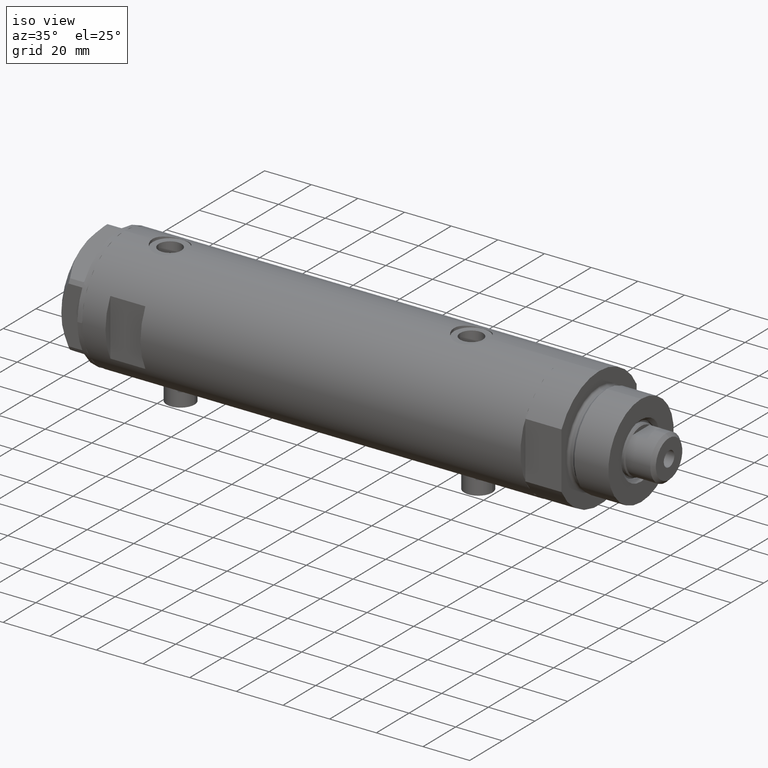
[diagram: clean part render]
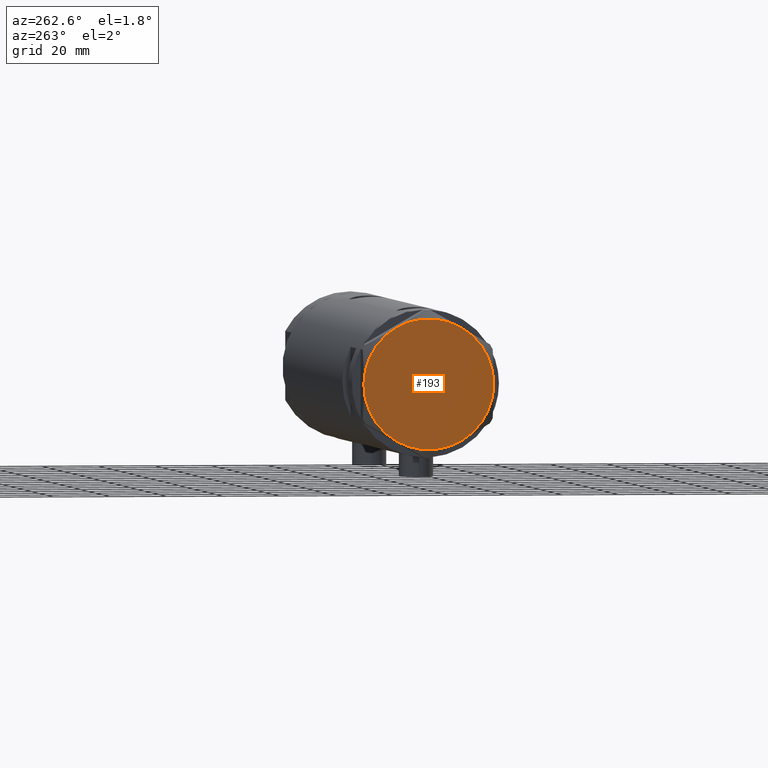
[diagram: tour spotlight — one face highlighted and labeled with its STEP entity id]
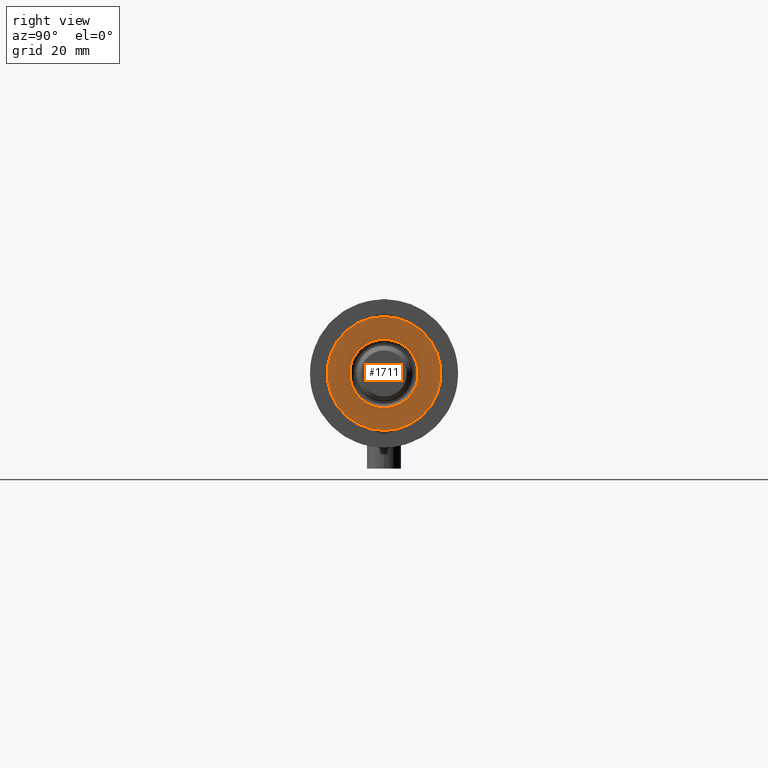
[diagram: tour spotlight — one face highlighted and labeled with its STEP entity id]
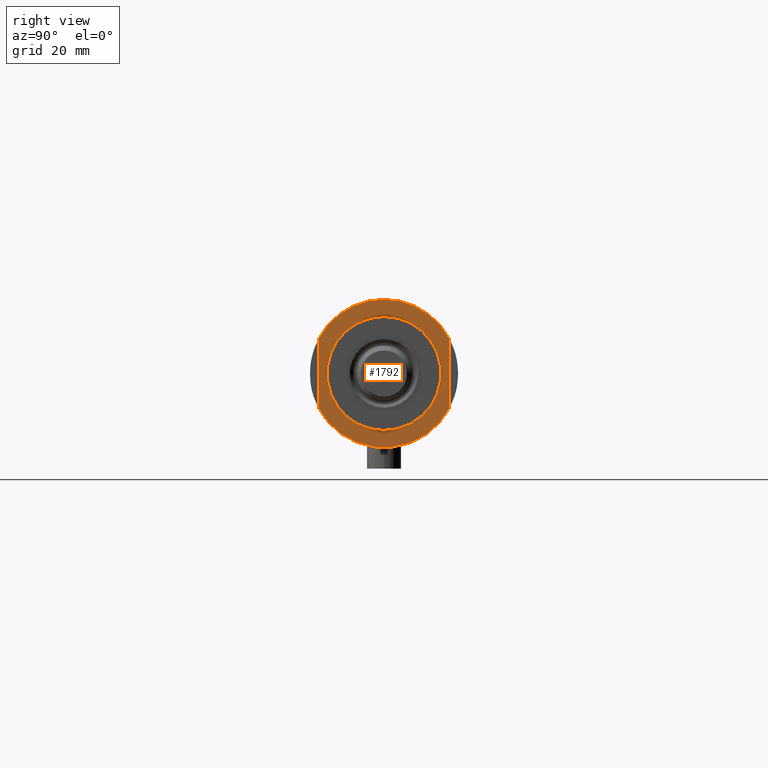
[diagram: tour spotlight — one face highlighted and labeled with its STEP entity id]
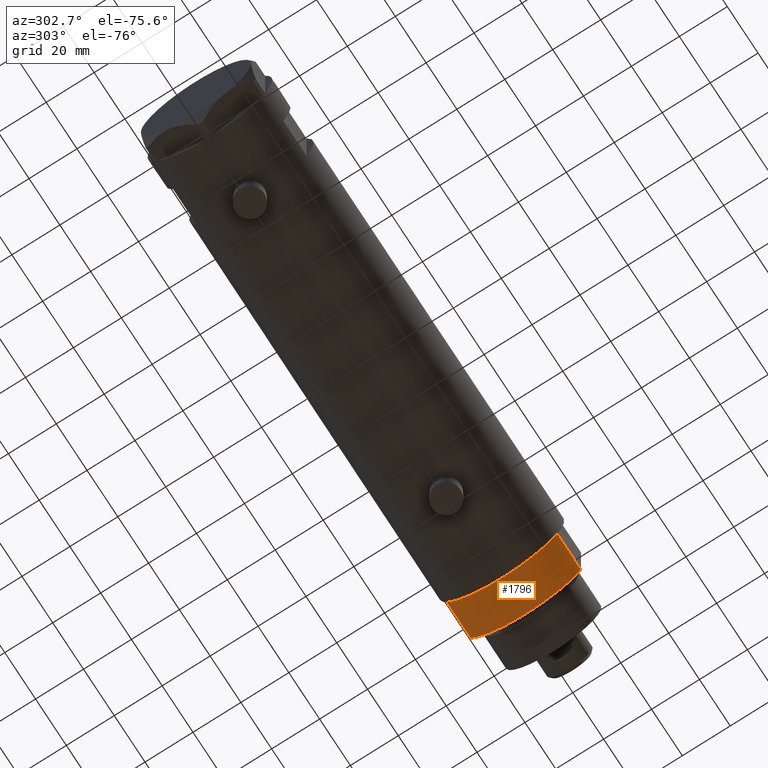
[diagram: tour spotlight — one face highlighted and labeled with its STEP entity id]
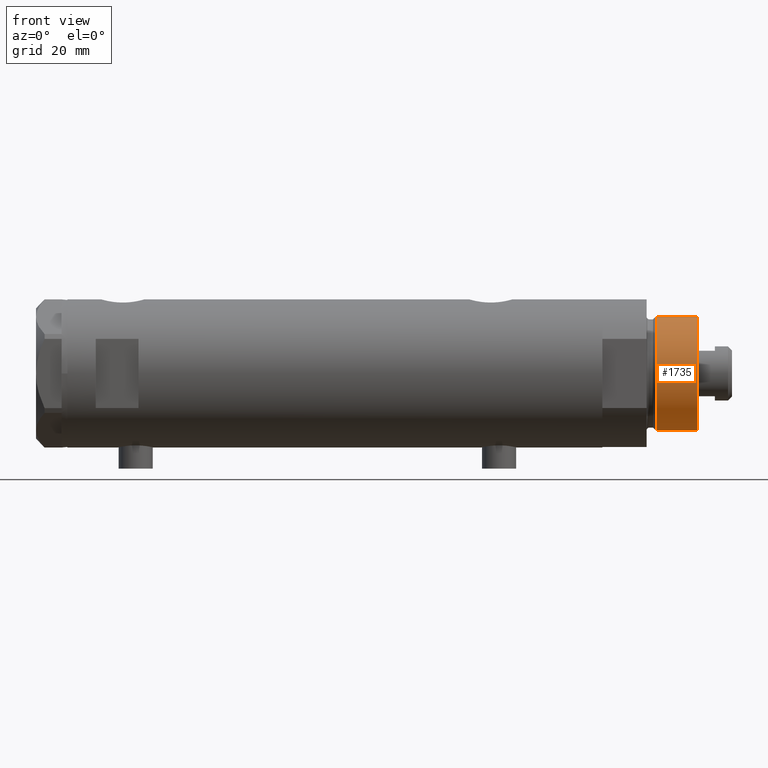
[diagram: tour spotlight — one face highlighted and labeled with its STEP entity id]
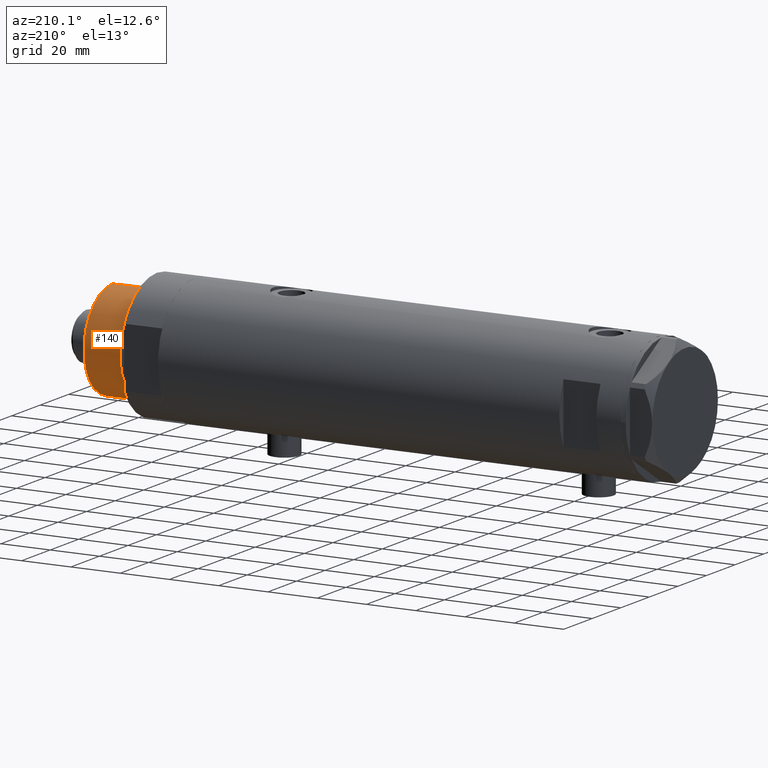
[diagram: tour spotlight — one face highlighted and labeled with its STEP entity id]
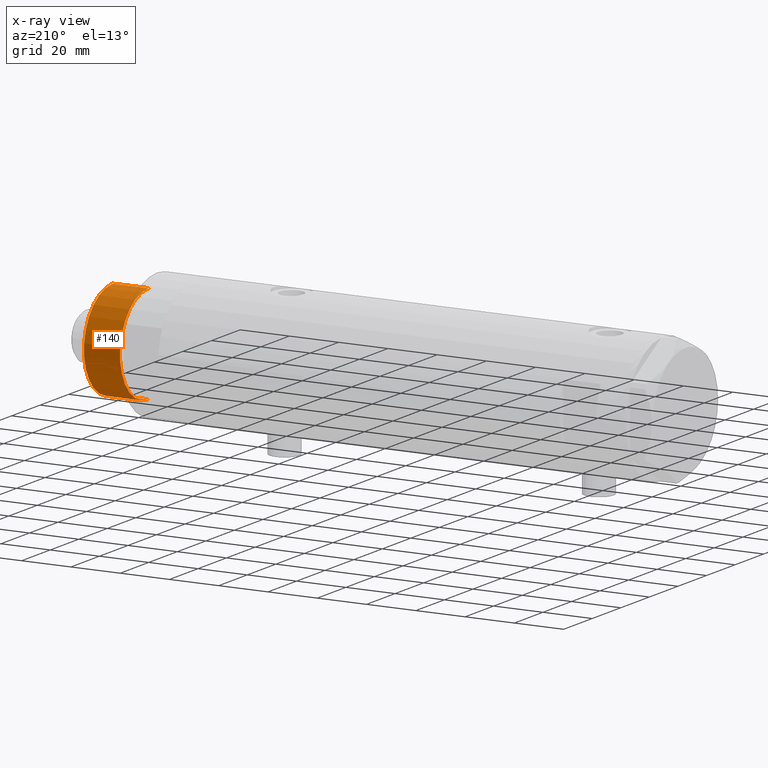
[diagram: x-ray of the same camera — body ghosted, this tour face saturated]
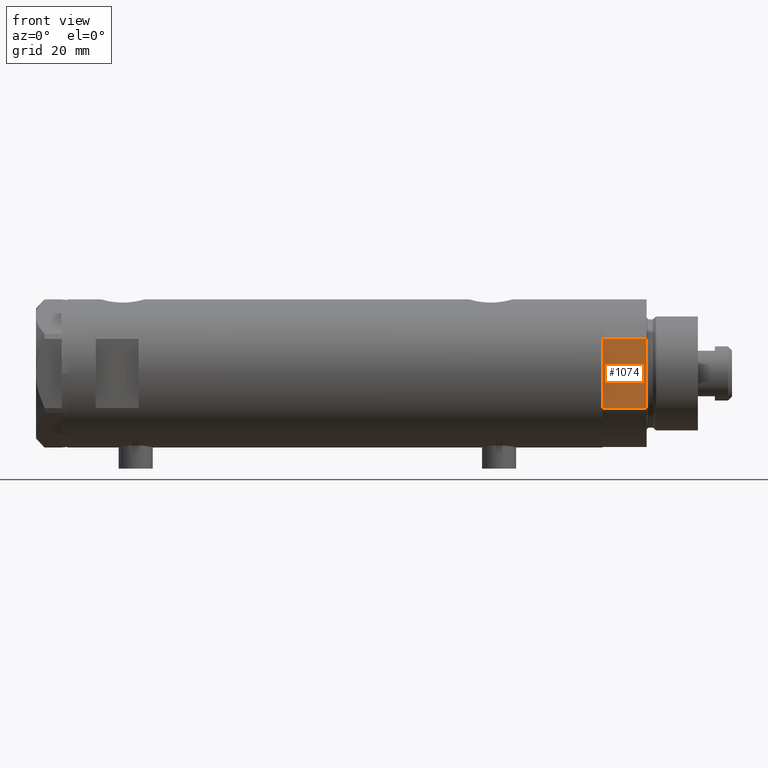
[diagram: tour spotlight — one face highlighted and labeled with its STEP entity id]
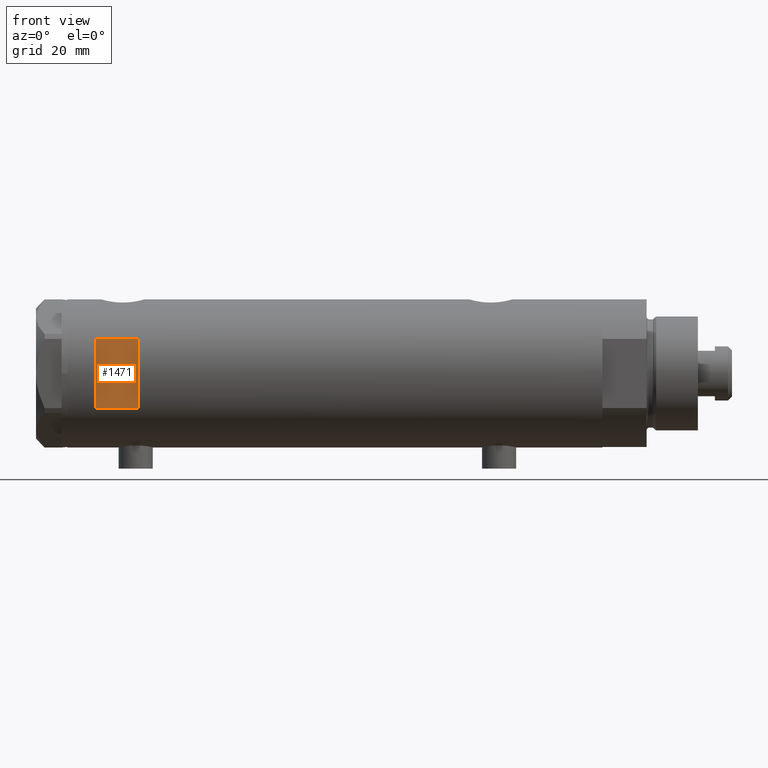
[diagram: tour spotlight — one face highlighted and labeled with its STEP entity id]
A machine part: a face-by-face anatomy tour. The part has 134 B-rep faces; the first image is the clean iso view, then the 8 largest visible faces are spotlighted one at a time (largest first), each with its STEP entity span.

Face 1 — auxiliary view, entity #193. In plain terms, the highlighted planar face has unit normal (-1, -0, 0).
Definition (entity closure, byte-faithful):
#57 = CARTESIAN_POINT ( 'NONE',  ( 0.000000000000000000, 0.000000000000000000, 9.000000000000000000 ) ) ;
#98 = CARTESIAN_POINT ( 'NONE',  ( -11.50000000000004441, 19.91858428704211548, 9.000000000000000000 ) ) ;
#193 = ADVANCED_FACE ( 'NONE', ( #4013 ), #1480, .T. ) ;
#208 = CARTESIAN_POINT ( 'NONE',  ( -11.49999999999990585, -19.91858428704219364, 9.000000000000000000 ) ) ;
#209 = CARTESIAN_POINT ( 'NONE',  ( 11.50000000000018296, -19.91858428704203732, 9.000000000000000000 ) ) ;
#247 = ORIENTED_EDGE ( 'NONE', *, *, #3307, .T. ) ;
#273 = CIRCLE ( 'NONE', #3564, 23.00000000000004619 ) ;
#281 = DIRECTION ( 'NONE',  ( 0.000000000000000000, 0.000000000000000000, 1.000000000000000000 ) ) ;
#449 = CIRCLE ( 'NONE', #4292, 23.00000000000004619 ) ;
#463 = AXIS2_PLACEMENT_3D ( 'NONE', #2617, #4765, #4091 ) ;
#591 = ORIENTED_EDGE ( 'NONE', *, *, #4259, .T. ) ;
#627 = CARTESIAN_POINT ( 'NONE',  ( 0.000000000000000000, 0.000000000000000000, 9.000000000000000000 ) ) ;
#681 = ORIENTED_EDGE ( 'NONE', *, *, #1924, .T. ) ;
#853 = DIRECTION ( 'NONE',  ( 0.000000000000000000, 0.000000000000000000, 1.000000000000000000 ) ) ;
#984 = AXIS2_PLACEMENT_3D ( 'NONE', #627, #1693, #3174 ) ;
#1199 = CARTESIAN_POINT ( 'NONE',  ( 11.49999999999990408, 19.91858428704219364, 9.000000000000000000 ) ) ;
#1480 = PLANE ( 'NONE',  #3637 ) ;
#1563 = EDGE_CURVE ( 'NONE', #4490, #1910, #2737, .T. ) ;
#1564 = DIRECTION ( 'NONE',  ( 0.000000000000000000, 0.000000000000000000, 1.000000000000000000 ) ) ;
#1693 = DIRECTION ( 'NONE',  ( 0.000000000000000000, 0.000000000000000000, 1.000000000000000000 ) ) ;
#1710 = VERTEX_POINT ( 'NONE', #3215 ) ;
#1910 = VERTEX_POINT ( 'NONE', #1984 ) ;
#1924 = EDGE_CURVE ( 'NONE', #2931, #4490, #449, .T. ) ;
#1984 = CARTESIAN_POINT ( 'NONE',  ( 22.99999999999995026, 2.373657066004705010E-13, 9.000000000000000000 ) ) ;
#2035 = DIRECTION ( 'NONE',  ( 1.000000000000000000, 0.000000000000000000, 0.000000000000000000 ) ) ;
#2381 = CARTESIAN_POINT ( 'NONE',  ( 0.000000000000000000, 0.000000000000000000, 9.000000000000000000 ) ) ;
#2407 = DIRECTION ( 'NONE',  ( 1.000000000000000000, 0.000000000000000000, 0.000000000000000000 ) ) ;
#2445 = CARTESIAN_POINT ( 'NONE',  ( 0.000000000000000000, 0.000000000000000000, 9.000000000000000000 ) ) ;
#2543 = AXIS2_PLACEMENT_3D ( 'NONE', #57, #1564, #4181 ) ;
#2617 = CARTESIAN_POINT ( 'NONE',  ( 0.000000000000000000, 0.000000000000000000, 9.000000000000000000 ) ) ;
#2701 = ORIENTED_EDGE ( 'NONE', *, *, #1563, .T. ) ;
#2737 = CIRCLE ( 'NONE', #3968, 23.00000000000004619 ) ;
#2795 = VERTEX_POINT ( 'NONE', #1199 ) ;
#2931 = VERTEX_POINT ( 'NONE', #208 ) ;
#2933 = EDGE_CURVE ( 'NONE', #4376, #1710, #273, .T. ) ;
#2953 = CIRCLE ( 'NONE', #984, 23.00000000000004619 ) ;
#3008 = CARTESIAN_POINT ( 'NONE',  ( 0.000000000000000000, 0.000000000000000000, 9.000000000000000000 ) ) ;
#3174 = DIRECTION ( 'NONE',  ( 1.000000000000000000, 0.000000000000000000, 0.000000000000000000 ) ) ;
#3215 = CARTESIAN_POINT ( 'NONE',  ( -23.00000000000004619, -8.112498833180673323E-14, 9.000000000000000000 ) ) ;
#3307 = EDGE_CURVE ( 'NONE', #1710, #2931, #2953, .T. ) ;
#3337 = ORIENTED_EDGE ( 'NONE', *, *, #3698, .T. ) ;
#3564 = AXIS2_PLACEMENT_3D ( 'NONE', #2445, #4250, #4709 ) ;
#3602 = ORIENTED_EDGE ( 'NONE', *, *, #2933, .T. ) ;
#3637 = AXIS2_PLACEMENT_3D ( 'NONE', #3639, #281, #3665 ) ;
#3639 = CARTESIAN_POINT ( 'NONE',  ( 0.000000000000000000, 0.000000000000000000, 9.000000000000000000 ) ) ;
#3665 = DIRECTION ( 'NONE',  ( 1.000000000000000000, 0.000000000000000000, -0.000000000000000000 ) ) ;
#3698 = EDGE_CURVE ( 'NONE', #2795, #4376, #4650, .T. ) ;
#3910 = CIRCLE ( 'NONE', #463, 23.00000000000004619 ) ;
#3968 = AXIS2_PLACEMENT_3D ( 'NONE', #3008, #853, #2407 ) ;
#4013 = FACE_OUTER_BOUND ( 'NONE', #4449, .T. ) ;
#4091 = DIRECTION ( 'NONE',  ( 1.000000000000000000, 0.000000000000000000, 0.000000000000000000 ) ) ;
#4181 = DIRECTION ( 'NONE',  ( 1.000000000000000000, 0.000000000000000000, 0.000000000000000000 ) ) ;
#4250 = DIRECTION ( 'NONE',  ( 0.000000000000000000, 0.000000000000000000, 1.000000000000000000 ) ) ;
#4259 = EDGE_CURVE ( 'NONE', #1910, #2795, #3910, .T. ) ;
#4273 = DIRECTION ( 'NONE',  ( 0.000000000000000000, 0.000000000000000000, 1.000000000000000000 ) ) ;
#4292 = AXIS2_PLACEMENT_3D ( 'NONE', #2381, #4273, #2035 ) ;
#4376 = VERTEX_POINT ( 'NONE', #98 ) ;
#4449 = EDGE_LOOP ( 'NONE', ( #2701, #591, #3337, #3602, #247, #681 ) ) ;
#4490 = VERTEX_POINT ( 'NONE', #209 ) ;
#4650 = CIRCLE ( 'NONE', #2543, 23.00000000000004619 ) ;
#4709 = DIRECTION ( 'NONE',  ( 1.000000000000000000, 0.000000000000000000, 0.000000000000000000 ) ) ;
#4765 = DIRECTION ( 'NONE',  ( 0.000000000000000000, 0.000000000000000000, 1.000000000000000000 ) ) ;

Face 2 — right view, entity #1711. In plain terms, the highlighted planar face has unit normal (1, 0, -0).
Definition (entity closure, byte-faithful):
#21 = CARTESIAN_POINT ( 'NONE',  ( 0.000000000000000000, 0.000000000000000000, 33.50000000000000000 ) ) ;
#48 = DIRECTION ( 'NONE',  ( 0.000000000000000000, 0.000000000000000000, 1.000000000000000000 ) ) ;
#80 = DIRECTION ( 'NONE',  ( -0.000000000000000000, -0.000000000000000000, -1.000000000000000000 ) ) ;
#167 = VERTEX_POINT ( 'NONE', #4570 ) ;
#172 = ORIENTED_EDGE ( 'NONE', *, *, #173, .T. ) ;
#173 = EDGE_CURVE ( 'NONE', #2964, #570, #352, .T. ) ;
#352 = CIRCLE ( 'NONE', #655, 19.99999999999999645 ) ;
#525 = AXIS2_PLACEMENT_3D ( 'NONE', #4180, #80, #1239 ) ;
#570 = VERTEX_POINT ( 'NONE', #3015 ) ;
#620 = CARTESIAN_POINT ( 'NONE',  ( 0.000000000000000000, 0.000000000000000000, 33.50000000000000000 ) ) ;
#655 = AXIS2_PLACEMENT_3D ( 'NONE', #725, #2235, #2533 ) ;
#685 = VERTEX_POINT ( 'NONE', #2536 ) ;
#725 = CARTESIAN_POINT ( 'NONE',  ( 0.000000000000000000, 0.000000000000000000, 33.50000000000000000 ) ) ;
#1006 = FACE_OUTER_BOUND ( 'NONE', #4121, .T. ) ;
#1014 = ORIENTED_EDGE ( 'NONE', *, *, #3111, .T. ) ;
#1239 = DIRECTION ( 'NONE',  ( 1.000000000000000000, 0.000000000000000000, 0.000000000000000000 ) ) ;
#1312 = CIRCLE ( 'NONE', #4039, 12.05000000000000426 ) ;
#1361 = FACE_BOUND ( 'NONE', #2869, .T. ) ;
#1452 = DIRECTION ( 'NONE',  ( 1.000000000000000000, 0.000000000000000000, 0.000000000000000000 ) ) ;
#1711 = ADVANCED_FACE ( 'NONE', ( #1361, #1006 ), #4345, .T. ) ;
#1892 = EDGE_CURVE ( 'NONE', #167, #685, #4043, .T. ) ;
#1950 = AXIS2_PLACEMENT_3D ( 'NONE', #620, #3598, #2130 ) ;
#2130 = DIRECTION ( 'NONE',  ( 1.000000000000000000, 0.000000000000000000, -0.000000000000000000 ) ) ;
#2231 = ORIENTED_EDGE ( 'NONE', *, *, #2354, .T. ) ;
#2235 = DIRECTION ( 'NONE',  ( 0.000000000000000000, 0.000000000000000000, 1.000000000000000000 ) ) ;
#2354 = EDGE_CURVE ( 'NONE', #570, #2964, #3886, .T. ) ;
#2533 = DIRECTION ( 'NONE',  ( 1.000000000000000000, 0.000000000000000000, 0.000000000000000000 ) ) ;
#2536 = CARTESIAN_POINT ( 'NONE',  ( 12.05000000000000426, 0.000000000000000000, 33.50000000000000000 ) ) ;
#2695 = DIRECTION ( 'NONE',  ( 1.000000000000000000, 0.000000000000000000, 0.000000000000000000 ) ) ;
#2869 = EDGE_LOOP ( 'NONE', ( #1014, #4827 ) ) ;
#2964 = VERTEX_POINT ( 'NONE', #4782 ) ;
#3015 = CARTESIAN_POINT ( 'NONE',  ( -19.99999999999999645, 0.000000000000000000, 33.50000000000000000 ) ) ;
#3111 = EDGE_CURVE ( 'NONE', #685, #167, #1312, .T. ) ;
#3598 = DIRECTION ( 'NONE',  ( 0.000000000000000000, 0.000000000000000000, 1.000000000000000000 ) ) ;
#3886 = CIRCLE ( 'NONE', #4134, 19.99999999999999645 ) ;
#4039 = AXIS2_PLACEMENT_3D ( 'NONE', #21, #4470, #1452 ) ;
#4043 = CIRCLE ( 'NONE', #525, 12.05000000000000426 ) ;
#4121 = EDGE_LOOP ( 'NONE', ( #2231, #172 ) ) ;
#4134 = AXIS2_PLACEMENT_3D ( 'NONE', #4148, #48, #2695 ) ;
#4148 = CARTESIAN_POINT ( 'NONE',  ( 0.000000000000000000, 0.000000000000000000, 33.50000000000000000 ) ) ;
#4180 = CARTESIAN_POINT ( 'NONE',  ( 0.000000000000000000, 0.000000000000000000, 33.50000000000000000 ) ) ;
#4345 = PLANE ( 'NONE',  #1950 ) ;
#4470 = DIRECTION ( 'NONE',  ( -0.000000000000000000, -0.000000000000000000, -1.000000000000000000 ) ) ;
#4570 = CARTESIAN_POINT ( 'NONE',  ( -12.05000000000000426, 1.475699392972560823E-15, 33.50000000000000000 ) ) ;
#4782 = CARTESIAN_POINT ( 'NONE',  ( 19.99999999999999645, 2.449293598294706119E-15, 33.50000000000000000 ) ) ;
#4827 = ORIENTED_EDGE ( 'NONE', *, *, #1892, .T. ) ;

Face 3 — right view, entity #1792. In plain terms, the highlighted planar face has unit normal (1, 0, -0).
Definition (entity closure, byte-faithful):
#2 = DIRECTION ( 'NONE',  ( -0.000000000000000000, -0.000000000000000000, -1.000000000000000000 ) ) ;
#62 = CARTESIAN_POINT ( 'NONE',  ( -12.12435565298215145, 23.00000000000000355, 15.50000000000000000 ) ) ;
#477 = CARTESIAN_POINT ( 'NONE',  ( 0.000000000000000000, 0.000000000000000000, 15.50000000000000000 ) ) ;
#540 = VERTEX_POINT ( 'NONE', #2850 ) ;
#546 = ORIENTED_EDGE ( 'NONE', *, *, #2580, .T. ) ;
#633 = DIRECTION ( 'NONE',  ( -1.000000000000000000, -0.000000000000000000, -0.000000000000000000 ) ) ;
#656 = DIRECTION ( 'NONE',  ( 1.000000000000000000, 0.000000000000000000, 0.000000000000000000 ) ) ;
#921 = AXIS2_PLACEMENT_3D ( 'NONE', #1873, #1536, #2997 ) ;
#1007 = CARTESIAN_POINT ( 'NONE',  ( 12.12435565298215323, -22.99999999999999645, 15.50000000000000000 ) ) ;
#1028 = CARTESIAN_POINT ( 'NONE',  ( 0.000000000000000000, 0.000000000000000000, 15.50000000000000000 ) ) ;
#1166 = CARTESIAN_POINT ( 'NONE',  ( 0.000000000000000000, 0.000000000000000000, 15.50000000000000000 ) ) ;
#1173 = CIRCLE ( 'NONE', #2436, 26.00000000000000355 ) ;
#1191 = DIRECTION ( 'NONE',  ( 1.000000000000000000, 0.000000000000000000, 0.000000000000000000 ) ) ;
#1384 = ORIENTED_EDGE ( 'NONE', *, *, #2820, .F. ) ;
#1466 = EDGE_CURVE ( 'NONE', #540, #3524, #2255, .T. ) ;
#1536 = DIRECTION ( 'NONE',  ( 0.000000000000000000, 0.000000000000000000, 1.000000000000000000 ) ) ;
#1547 = LINE ( 'NONE', #62, #3176 ) ;
#1572 = VERTEX_POINT ( 'NONE', #3889 ) ;
#1612 = ORIENTED_EDGE ( 'NONE', *, *, #2157, .T. ) ;
#1769 = DIRECTION ( 'NONE',  ( 1.000000000000000000, 0.000000000000000000, 0.000000000000000000 ) ) ;
#1786 = AXIS2_PLACEMENT_3D ( 'NONE', #1028, #4023, #656 ) ;
#1792 = ADVANCED_FACE ( 'NONE', ( #3755, #4500 ), #3029, .T. ) ;
#1863 = AXIS2_PLACEMENT_3D ( 'NONE', #1166, #3706, #2196 ) ;
#1873 = CARTESIAN_POINT ( 'NONE',  ( 0.000000000000000000, 0.000000000000000000, 15.50000000000000000 ) ) ;
#1936 = ORIENTED_EDGE ( 'NONE', *, *, #4700, .T. ) ;
#1939 = CARTESIAN_POINT ( 'NONE',  ( -12.12435565298215323, -22.99999999999999645, 15.50000000000000000 ) ) ;
#2020 = EDGE_CURVE ( 'NONE', #3588, #2749, #2080, .T. ) ;
#2080 = LINE ( 'NONE', #2900, #2958 ) ;
#2157 = EDGE_CURVE ( 'NONE', #4690, #2283, #3040, .T. ) ;
#2196 = DIRECTION ( 'NONE',  ( 1.000000000000000000, 0.000000000000000000, -0.000000000000000000 ) ) ;
#2255 = CIRCLE ( 'NONE', #4597, 20.00000000000000000 ) ;
#2283 = VERTEX_POINT ( 'NONE', #3457 ) ;
#2436 = AXIS2_PLACEMENT_3D ( 'NONE', #2487, #4018, #1769 ) ;
#2487 = CARTESIAN_POINT ( 'NONE',  ( 0.000000000000000000, 0.000000000000000000, 15.50000000000000000 ) ) ;
#2580 = EDGE_CURVE ( 'NONE', #3588, #1572, #2646, .T. ) ;
#2646 = CIRCLE ( 'NONE', #1786, 26.00000000000000355 ) ;
#2749 = VERTEX_POINT ( 'NONE', #1939 ) ;
#2820 = EDGE_CURVE ( 'NONE', #4690, #1572, #1547, .T. ) ;
#2850 = CARTESIAN_POINT ( 'NONE',  ( -20.00000000000000000, 2.449293598294706513E-15, 15.50000000000000000 ) ) ;
#2900 = CARTESIAN_POINT ( 'NONE',  ( -12.12435565298215145, -22.99999999999999645, 15.50000000000000000 ) ) ;
#2958 = VECTOR ( 'NONE', #633, 1000.000000000000000 ) ;
#2997 = DIRECTION ( 'NONE',  ( 1.000000000000000000, 0.000000000000000000, 0.000000000000000000 ) ) ;
#3029 = PLANE ( 'NONE',  #1863 ) ;
#3038 = DIRECTION ( 'NONE',  ( 1.000000000000000000, 0.000000000000000000, 0.000000000000000000 ) ) ;
#3040 = CIRCLE ( 'NONE', #921, 26.00000000000000355 ) ;
#3149 = AXIS2_PLACEMENT_3D ( 'NONE', #477, #2, #1191 ) ;
#3176 = VECTOR ( 'NONE', #3038, 1000.000000000000000 ) ;
#3227 = CIRCLE ( 'NONE', #3149, 20.00000000000000000 ) ;
#3297 = DIRECTION ( 'NONE',  ( 1.000000000000000000, 0.000000000000000000, 0.000000000000000000 ) ) ;
#3299 = CARTESIAN_POINT ( 'NONE',  ( -12.12435565298214613, 23.00000000000000355, 15.50000000000000000 ) ) ;
#3457 = CARTESIAN_POINT ( 'NONE',  ( -26.00000000000000355, 0.000000000000000000, 15.50000000000000000 ) ) ;
#3524 = VERTEX_POINT ( 'NONE', #4262 ) ;
#3588 = VERTEX_POINT ( 'NONE', #1007 ) ;
#3632 = EDGE_CURVE ( 'NONE', #3524, #540, #3227, .T. ) ;
#3706 = DIRECTION ( 'NONE',  ( 0.000000000000000000, 0.000000000000000000, 1.000000000000000000 ) ) ;
#3755 = FACE_BOUND ( 'NONE', #4326, .T. ) ;
#3889 = CARTESIAN_POINT ( 'NONE',  ( 12.12435565298214790, 23.00000000000000355, 15.50000000000000000 ) ) ;
#3995 = CARTESIAN_POINT ( 'NONE',  ( 0.000000000000000000, 0.000000000000000000, 15.50000000000000000 ) ) ;
#4014 = DIRECTION ( 'NONE',  ( -0.000000000000000000, -0.000000000000000000, -1.000000000000000000 ) ) ;
#4018 = DIRECTION ( 'NONE',  ( 0.000000000000000000, 0.000000000000000000, 1.000000000000000000 ) ) ;
#4023 = DIRECTION ( 'NONE',  ( 0.000000000000000000, 0.000000000000000000, 1.000000000000000000 ) ) ;
#4262 = CARTESIAN_POINT ( 'NONE',  ( 20.00000000000000000, 0.000000000000000000, 15.50000000000000000 ) ) ;
#4326 = EDGE_LOOP ( 'NONE', ( #4720, #4508 ) ) ;
#4368 = EDGE_LOOP ( 'NONE', ( #4804, #546, #1384, #1612, #1936 ) ) ;
#4500 = FACE_OUTER_BOUND ( 'NONE', #4368, .T. ) ;
#4508 = ORIENTED_EDGE ( 'NONE', *, *, #1466, .T. ) ;
#4597 = AXIS2_PLACEMENT_3D ( 'NONE', #3995, #4014, #3297 ) ;
#4690 = VERTEX_POINT ( 'NONE', #3299 ) ;
#4700 = EDGE_CURVE ( 'NONE', #2283, #2749, #1173, .T. ) ;
#4720 = ORIENTED_EDGE ( 'NONE', *, *, #3632, .T. ) ;
#4804 = ORIENTED_EDGE ( 'NONE', *, *, #2020, .F. ) ;

Face 4 — auxiliary view, entity #1796. In plain terms, the highlighted cylindrical surface (partial cylindrical patch) has radius 26 mm, axis along (-1, -0, 0).
Definition (entity closure, byte-faithful):
#257 = ORIENTED_EDGE ( 'NONE', *, *, #4493, .T. ) ;
#619 = EDGE_CURVE ( 'NONE', #2532, #1572, #4588, .T. ) ;
#656 = DIRECTION ( 'NONE',  ( 1.000000000000000000, 0.000000000000000000, 0.000000000000000000 ) ) ;
#732 = EDGE_LOOP ( 'NONE', ( #4106, #2939, #257, #851 ) ) ;
#738 = DIRECTION ( 'NONE',  ( -1.000000000000000000, 0.000000000000000000, 0.000000000000000000 ) ) ;
#847 = CARTESIAN_POINT ( 'NONE',  ( 12.12435565298215323, -22.99999999999999645, 0.000000000000000000 ) ) ;
#851 = ORIENTED_EDGE ( 'NONE', *, *, #619, .T. ) ;
#1007 = CARTESIAN_POINT ( 'NONE',  ( 12.12435565298215323, -22.99999999999999645, 15.50000000000000000 ) ) ;
#1028 = CARTESIAN_POINT ( 'NONE',  ( 0.000000000000000000, 0.000000000000000000, 15.50000000000000000 ) ) ;
#1048 = CYLINDRICAL_SURFACE ( 'NONE', #2258, 26.00000000000000355 ) ;
#1226 = DIRECTION ( 'NONE',  ( -0.000000000000000000, -0.000000000000000000, 1.000000000000000000 ) ) ;
#1306 = VECTOR ( 'NONE', #1226, 1000.000000000000000 ) ;
#1354 = DIRECTION ( 'NONE',  ( 1.000000000000000000, 0.000000000000000000, 0.000000000000000000 ) ) ;
#1572 = VERTEX_POINT ( 'NONE', #3889 ) ;
#1786 = AXIS2_PLACEMENT_3D ( 'NONE', #1028, #4023, #656 ) ;
#1795 = AXIS2_PLACEMENT_3D ( 'NONE', #2399, #2466, #1354 ) ;
#1796 = ADVANCED_FACE ( 'NONE', ( #2930 ), #1048, .T. ) ;
#1913 = LINE ( 'NONE', #3396, #2341 ) ;
#2258 = AXIS2_PLACEMENT_3D ( 'NONE', #4048, #4095, #738 ) ;
#2341 = VECTOR ( 'NONE', #4532, 1000.000000000000000 ) ;
#2399 = CARTESIAN_POINT ( 'NONE',  ( 0.000000000000000000, 0.000000000000000000, 0.000000000000000000 ) ) ;
#2466 = DIRECTION ( 'NONE',  ( 0.000000000000000000, 0.000000000000000000, 1.000000000000000000 ) ) ;
#2532 = VERTEX_POINT ( 'NONE', #4005 ) ;
#2580 = EDGE_CURVE ( 'NONE', #3588, #1572, #2646, .T. ) ;
#2646 = CIRCLE ( 'NONE', #1786, 26.00000000000000355 ) ;
#2840 = EDGE_CURVE ( 'NONE', #4451, #3588, #1913, .T. ) ;
#2930 = FACE_OUTER_BOUND ( 'NONE', #732, .T. ) ;
#2939 = ORIENTED_EDGE ( 'NONE', *, *, #2840, .F. ) ;
#3124 = CIRCLE ( 'NONE', #1795, 26.00000000000000355 ) ;
#3396 = CARTESIAN_POINT ( 'NONE',  ( 12.12435565298215323, -22.99999999999999645, 0.000000000000000000 ) ) ;
#3588 = VERTEX_POINT ( 'NONE', #1007 ) ;
#3824 = CARTESIAN_POINT ( 'NONE',  ( 12.12435565298215323, 23.00000000000000355, 0.000000000000000000 ) ) ;
#3889 = CARTESIAN_POINT ( 'NONE',  ( 12.12435565298214790, 23.00000000000000355, 15.50000000000000000 ) ) ;
#4005 = CARTESIAN_POINT ( 'NONE',  ( 12.12435565298214080, 23.00000000000000355, 0.000000000000000000 ) ) ;
#4023 = DIRECTION ( 'NONE',  ( 0.000000000000000000, 0.000000000000000000, 1.000000000000000000 ) ) ;
#4048 = CARTESIAN_POINT ( 'NONE',  ( 0.000000000000000000, 0.000000000000000000, 15.50000000000000000 ) ) ;
#4095 = DIRECTION ( 'NONE',  ( -0.000000000000000000, -0.000000000000000000, -1.000000000000000000 ) ) ;
#4106 = ORIENTED_EDGE ( 'NONE', *, *, #2580, .F. ) ;
#4451 = VERTEX_POINT ( 'NONE', #847 ) ;
#4493 = EDGE_CURVE ( 'NONE', #4451, #2532, #3124, .T. ) ;
#4532 = DIRECTION ( 'NONE',  ( -0.000000000000000000, -0.000000000000000000, 1.000000000000000000 ) ) ;
#4588 = LINE ( 'NONE', #3824, #1306 ) ;

Face 5 — front view, entity #1735. In plain terms, the highlighted cylindrical surface (partial cylindrical patch) has radius 20 mm, axis along (-1, -0, 0).
Definition (entity closure, byte-faithful):
#25 = FACE_OUTER_BOUND ( 'NONE', #2431, .T. ) ;
#48 = DIRECTION ( 'NONE',  ( 0.000000000000000000, 0.000000000000000000, 1.000000000000000000 ) ) ;
#152 = LINE ( 'NONE', #1214, #1392 ) ;
#185 = DIRECTION ( 'NONE',  ( 1.000000000000000000, 0.000000000000000000, 0.000000000000000000 ) ) ;
#570 = VERTEX_POINT ( 'NONE', #3015 ) ;
#766 = DIRECTION ( 'NONE',  ( -0.000000000000000000, -0.000000000000000000, -1.000000000000000000 ) ) ;
#995 = CARTESIAN_POINT ( 'NONE',  ( 19.99999999999999645, 2.449293598294706119E-15, 18.87384048104053846 ) ) ;
#1148 = VERTEX_POINT ( 'NONE', #995 ) ;
#1160 = CARTESIAN_POINT ( 'NONE',  ( 0.000000000000000000, 0.000000000000000000, 18.87384048104053846 ) ) ;
#1214 = CARTESIAN_POINT ( 'NONE',  ( -19.99999999999999645, 0.000000000000000000, 33.50000000000000000 ) ) ;
#1341 = EDGE_CURVE ( 'NONE', #2964, #1148, #3783, .T. ) ;
#1392 = VECTOR ( 'NONE', #2305, 1000.000000000000000 ) ;
#1540 = CYLINDRICAL_SURFACE ( 'NONE', #2176, 19.99999999999999645 ) ;
#1544 = ORIENTED_EDGE ( 'NONE', *, *, #1953, .T. ) ;
#1627 = ORIENTED_EDGE ( 'NONE', *, *, #1341, .F. ) ;
#1735 = ADVANCED_FACE ( 'NONE', ( #25 ), #1540, .T. ) ;
#1876 = DIRECTION ( 'NONE',  ( -1.000000000000000000, 0.000000000000000000, 0.000000000000000000 ) ) ;
#1953 = EDGE_CURVE ( 'NONE', #570, #3451, #152, .T. ) ;
#1989 = ORIENTED_EDGE ( 'NONE', *, *, #2354, .F. ) ;
#2176 = AXIS2_PLACEMENT_3D ( 'NONE', #2977, #4845, #1876 ) ;
#2305 = DIRECTION ( 'NONE',  ( -0.000000000000000000, -0.000000000000000000, -1.000000000000000000 ) ) ;
#2318 = EDGE_CURVE ( 'NONE', #3451, #1148, #3739, .T. ) ;
#2354 = EDGE_CURVE ( 'NONE', #570, #2964, #3886, .T. ) ;
#2358 = CARTESIAN_POINT ( 'NONE',  ( 19.99999999999999645, 2.449293598294706119E-15, 33.50000000000000000 ) ) ;
#2431 = EDGE_LOOP ( 'NONE', ( #1627, #1989, #1544, #4398 ) ) ;
#2695 = DIRECTION ( 'NONE',  ( 1.000000000000000000, 0.000000000000000000, 0.000000000000000000 ) ) ;
#2882 = AXIS2_PLACEMENT_3D ( 'NONE', #1160, #3476, #185 ) ;
#2964 = VERTEX_POINT ( 'NONE', #4782 ) ;
#2977 = CARTESIAN_POINT ( 'NONE',  ( 0.000000000000000000, 0.000000000000000000, 33.50000000000000000 ) ) ;
#3015 = CARTESIAN_POINT ( 'NONE',  ( -19.99999999999999645, 0.000000000000000000, 33.50000000000000000 ) ) ;
#3098 = CARTESIAN_POINT ( 'NONE',  ( -19.99999999999999645, 0.000000000000000000, 18.87384048104053846 ) ) ;
#3451 = VERTEX_POINT ( 'NONE', #3098 ) ;
#3476 = DIRECTION ( 'NONE',  ( -0.000000000000000000, -0.000000000000000000, 1.000000000000000000 ) ) ;
#3739 = CIRCLE ( 'NONE', #2882, 19.99999999999999645 ) ;
#3783 = LINE ( 'NONE', #2358, #4211 ) ;
#3886 = CIRCLE ( 'NONE', #4134, 19.99999999999999645 ) ;
#4134 = AXIS2_PLACEMENT_3D ( 'NONE', #4148, #48, #2695 ) ;
#4148 = CARTESIAN_POINT ( 'NONE',  ( 0.000000000000000000, 0.000000000000000000, 33.50000000000000000 ) ) ;
#4211 = VECTOR ( 'NONE', #766, 1000.000000000000000 ) ;
#4398 = ORIENTED_EDGE ( 'NONE', *, *, #2318, .T. ) ;
#4782 = CARTESIAN_POINT ( 'NONE',  ( 19.99999999999999645, 2.449293598294706119E-15, 33.50000000000000000 ) ) ;
#4845 = DIRECTION ( 'NONE',  ( -0.000000000000000000, -0.000000000000000000, -1.000000000000000000 ) ) ;

Face 6 — auxiliary view, entity #140. An x-ray twin of the same camera follows (body ghosted, this face saturated) — the face is partly hidden behind the body. In plain terms, the highlighted cylindrical surface (partial cylindrical patch) has radius 20 mm, axis along (-1, -0, 0).
Definition (entity closure, byte-faithful):
#65 = EDGE_LOOP ( 'NONE', ( #2699, #2279, #1290, #356 ) ) ;
#140 = ADVANCED_FACE ( 'NONE', ( #3019 ), #1159, .T. ) ;
#152 = LINE ( 'NONE', #1214, #1392 ) ;
#173 = EDGE_CURVE ( 'NONE', #2964, #570, #352, .T. ) ;
#352 = CIRCLE ( 'NONE', #655, 19.99999999999999645 ) ;
#356 = ORIENTED_EDGE ( 'NONE', *, *, #1953, .F. ) ;
#570 = VERTEX_POINT ( 'NONE', #3015 ) ;
#655 = AXIS2_PLACEMENT_3D ( 'NONE', #725, #2235, #2533 ) ;
#725 = CARTESIAN_POINT ( 'NONE',  ( 0.000000000000000000, 0.000000000000000000, 33.50000000000000000 ) ) ;
#766 = DIRECTION ( 'NONE',  ( -0.000000000000000000, -0.000000000000000000, -1.000000000000000000 ) ) ;
#792 = CARTESIAN_POINT ( 'NONE',  ( 0.000000000000000000, 0.000000000000000000, 33.50000000000000000 ) ) ;
#816 = DIRECTION ( 'NONE',  ( -1.000000000000000000, 0.000000000000000000, 0.000000000000000000 ) ) ;
#900 = CARTESIAN_POINT ( 'NONE',  ( 0.000000000000000000, 0.000000000000000000, 18.87384048104053846 ) ) ;
#995 = CARTESIAN_POINT ( 'NONE',  ( 19.99999999999999645, 2.449293598294706119E-15, 18.87384048104053846 ) ) ;
#1081 = AXIS2_PLACEMENT_3D ( 'NONE', #900, #2778, #4561 ) ;
#1148 = VERTEX_POINT ( 'NONE', #995 ) ;
#1159 = CYLINDRICAL_SURFACE ( 'NONE', #4509, 19.99999999999999645 ) ;
#1214 = CARTESIAN_POINT ( 'NONE',  ( -19.99999999999999645, 0.000000000000000000, 33.50000000000000000 ) ) ;
#1290 = ORIENTED_EDGE ( 'NONE', *, *, #4087, .T. ) ;
#1341 = EDGE_CURVE ( 'NONE', #2964, #1148, #3783, .T. ) ;
#1392 = VECTOR ( 'NONE', #2305, 1000.000000000000000 ) ;
#1953 = EDGE_CURVE ( 'NONE', #570, #3451, #152, .T. ) ;
#2235 = DIRECTION ( 'NONE',  ( 0.000000000000000000, 0.000000000000000000, 1.000000000000000000 ) ) ;
#2279 = ORIENTED_EDGE ( 'NONE', *, *, #1341, .T. ) ;
#2305 = DIRECTION ( 'NONE',  ( -0.000000000000000000, -0.000000000000000000, -1.000000000000000000 ) ) ;
#2358 = CARTESIAN_POINT ( 'NONE',  ( 19.99999999999999645, 2.449293598294706119E-15, 33.50000000000000000 ) ) ;
#2533 = DIRECTION ( 'NONE',  ( 1.000000000000000000, 0.000000000000000000, 0.000000000000000000 ) ) ;
#2699 = ORIENTED_EDGE ( 'NONE', *, *, #173, .F. ) ;
#2778 = DIRECTION ( 'NONE',  ( -0.000000000000000000, -0.000000000000000000, 1.000000000000000000 ) ) ;
#2964 = VERTEX_POINT ( 'NONE', #4782 ) ;
#3015 = CARTESIAN_POINT ( 'NONE',  ( -19.99999999999999645, 0.000000000000000000, 33.50000000000000000 ) ) ;
#3019 = FACE_OUTER_BOUND ( 'NONE', #65, .T. ) ;
#3098 = CARTESIAN_POINT ( 'NONE',  ( -19.99999999999999645, 0.000000000000000000, 18.87384048104053846 ) ) ;
#3272 = CIRCLE ( 'NONE', #1081, 19.99999999999999645 ) ;
#3451 = VERTEX_POINT ( 'NONE', #3098 ) ;
#3778 = DIRECTION ( 'NONE',  ( -0.000000000000000000, -0.000000000000000000, -1.000000000000000000 ) ) ;
#3783 = LINE ( 'NONE', #2358, #4211 ) ;
#4087 = EDGE_CURVE ( 'NONE', #1148, #3451, #3272, .T. ) ;
#4211 = VECTOR ( 'NONE', #766, 1000.000000000000000 ) ;
#4509 = AXIS2_PLACEMENT_3D ( 'NONE', #792, #3778, #816 ) ;
#4561 = DIRECTION ( 'NONE',  ( 1.000000000000000000, 0.000000000000000000, 0.000000000000000000 ) ) ;
#4782 = CARTESIAN_POINT ( 'NONE',  ( 19.99999999999999645, 2.449293598294706119E-15, 33.50000000000000000 ) ) ;

Face 7 — front view, entity #1074. In plain terms, the highlighted planar face has unit normal (-0, 1, 0).
Definition (entity closure, byte-faithful):
#124 = AXIS2_PLACEMENT_3D ( 'NONE', #2285, #2004, #3879 ) ;
#244 = DIRECTION ( 'NONE',  ( -0.000000000000000000, -0.000000000000000000, 1.000000000000000000 ) ) ;
#470 = CARTESIAN_POINT ( 'NONE',  ( -12.12435565298215501, -22.99999999999999645, 0.000000000000000000 ) ) ;
#633 = DIRECTION ( 'NONE',  ( -1.000000000000000000, -0.000000000000000000, -0.000000000000000000 ) ) ;
#712 = DIRECTION ( 'NONE',  ( -1.000000000000000000, -0.000000000000000000, -0.000000000000000000 ) ) ;
#847 = CARTESIAN_POINT ( 'NONE',  ( 12.12435565298215323, -22.99999999999999645, 0.000000000000000000 ) ) ;
#1007 = CARTESIAN_POINT ( 'NONE',  ( 12.12435565298215323, -22.99999999999999645, 15.50000000000000000 ) ) ;
#1074 = ADVANCED_FACE ( 'NONE', ( #2768 ), #2625, .F. ) ;
#1207 = ORIENTED_EDGE ( 'NONE', *, *, #1826, .F. ) ;
#1442 = EDGE_LOOP ( 'NONE', ( #4037, #4356, #1207, #1688 ) ) ;
#1654 = EDGE_CURVE ( 'NONE', #2383, #2749, #3958, .T. ) ;
#1688 = ORIENTED_EDGE ( 'NONE', *, *, #2840, .T. ) ;
#1826 = EDGE_CURVE ( 'NONE', #4451, #2383, #3310, .T. ) ;
#1913 = LINE ( 'NONE', #3396, #2341 ) ;
#1939 = CARTESIAN_POINT ( 'NONE',  ( -12.12435565298215323, -22.99999999999999645, 15.50000000000000000 ) ) ;
#2004 = DIRECTION ( 'NONE',  ( -0.000000000000000000, 1.000000000000000000, 0.000000000000000000 ) ) ;
#2020 = EDGE_CURVE ( 'NONE', #3588, #2749, #2080, .T. ) ;
#2080 = LINE ( 'NONE', #2900, #2958 ) ;
#2285 = CARTESIAN_POINT ( 'NONE',  ( -12.12435565298215145, -22.99999999999999645, 0.000000000000000000 ) ) ;
#2341 = VECTOR ( 'NONE', #4532, 1000.000000000000000 ) ;
#2383 = VERTEX_POINT ( 'NONE', #470 ) ;
#2595 = CARTESIAN_POINT ( 'NONE',  ( -12.12435565298215145, -22.99999999999999645, 0.000000000000000000 ) ) ;
#2625 = PLANE ( 'NONE',  #124 ) ;
#2749 = VERTEX_POINT ( 'NONE', #1939 ) ;
#2768 = FACE_OUTER_BOUND ( 'NONE', #1442, .T. ) ;
#2817 = CARTESIAN_POINT ( 'NONE',  ( -12.12435565298215145, -22.99999999999999645, 0.000000000000000000 ) ) ;
#2840 = EDGE_CURVE ( 'NONE', #4451, #3588, #1913, .T. ) ;
#2900 = CARTESIAN_POINT ( 'NONE',  ( -12.12435565298215145, -22.99999999999999645, 15.50000000000000000 ) ) ;
#2958 = VECTOR ( 'NONE', #633, 1000.000000000000000 ) ;
#3182 = VECTOR ( 'NONE', #244, 1000.000000000000000 ) ;
#3310 = LINE ( 'NONE', #2595, #3498 ) ;
#3396 = CARTESIAN_POINT ( 'NONE',  ( 12.12435565298215323, -22.99999999999999645, 0.000000000000000000 ) ) ;
#3498 = VECTOR ( 'NONE', #712, 1000.000000000000000 ) ;
#3588 = VERTEX_POINT ( 'NONE', #1007 ) ;
#3879 = DIRECTION ( 'NONE',  ( 0.000000000000000000, -0.000000000000000000, 1.000000000000000000 ) ) ;
#3958 = LINE ( 'NONE', #2817, #3182 ) ;
#4037 = ORIENTED_EDGE ( 'NONE', *, *, #2020, .T. ) ;
#4356 = ORIENTED_EDGE ( 'NONE', *, *, #1654, .F. ) ;
#4451 = VERTEX_POINT ( 'NONE', #847 ) ;
#4532 = DIRECTION ( 'NONE',  ( -0.000000000000000000, -0.000000000000000000, 1.000000000000000000 ) ) ;

Face 8 — front view, entity #1471. In plain terms, the highlighted planar face has unit normal (-0, 1, 0).
Definition (entity closure, byte-faithful):
#226 = VERTEX_POINT ( 'NONE', #3401 ) ;
#282 = DIRECTION ( 'NONE',  ( 0.000000000000000000, 1.000000000000000000, 0.000000000000000000 ) ) ;
#430 = CARTESIAN_POINT ( 'NONE',  ( -26.00000000000000355, -23.00000000000000355, 68.95000000000000284 ) ) ;
#492 = CARTESIAN_POINT ( 'NONE',  ( -12.12435565298214080, -23.00000000000000355, 68.94999999999998863 ) ) ;
#610 = PLANE ( 'NONE',  #4837 ) ;
#751 = VECTOR ( 'NONE', #1400, 1000.000000000000000 ) ;
#797 = CARTESIAN_POINT ( 'NONE',  ( 12.12435565298214080, -23.00000000000000355, 83.95000000000000284 ) ) ;
#854 = DIRECTION ( 'NONE',  ( 1.000000000000000000, -0.000000000000000000, -0.000000000000000000 ) ) ;
#1153 = VECTOR ( 'NONE', #854, 1000.000000000000000 ) ;
#1193 = ORIENTED_EDGE ( 'NONE', *, *, #3059, .F. ) ;
#1267 = VERTEX_POINT ( 'NONE', #797 ) ;
#1400 = DIRECTION ( 'NONE',  ( 0.000000000000000000, 0.000000000000000000, 1.000000000000000000 ) ) ;
#1446 = CARTESIAN_POINT ( 'NONE',  ( -26.00000000000000355, -23.00000000000000355, 83.95000000000000284 ) ) ;
#1471 = ADVANCED_FACE ( 'NONE', ( #2159 ), #610, .F. ) ;
#1641 = ORIENTED_EDGE ( 'NONE', *, *, #2769, .T. ) ;
#1817 = LINE ( 'NONE', #4038, #3750 ) ;
#2159 = FACE_OUTER_BOUND ( 'NONE', #4479, .T. ) ;
#2382 = VERTEX_POINT ( 'NONE', #3071 ) ;
#2651 = CARTESIAN_POINT ( 'NONE',  ( -26.00000000000000355, -23.00000000000000355, 83.95000000000000284 ) ) ;
#2727 = LINE ( 'NONE', #430, #1153 ) ;
#2769 = EDGE_CURVE ( 'NONE', #3183, #2382, #2727, .T. ) ;
#2919 = DIRECTION ( 'NONE',  ( -0.000000000000000000, -0.000000000000000000, -1.000000000000000000 ) ) ;
#2966 = EDGE_CURVE ( 'NONE', #2382, #1267, #3615, .T. ) ;
#3043 = ORIENTED_EDGE ( 'NONE', *, *, #4571, .T. ) ;
#3059 = EDGE_CURVE ( 'NONE', #226, #1267, #3734, .T. ) ;
#3071 = CARTESIAN_POINT ( 'NONE',  ( 12.12435565298214080, -23.00000000000000355, 68.94999999999998863 ) ) ;
#3183 = VERTEX_POINT ( 'NONE', #492 ) ;
#3254 = CARTESIAN_POINT ( 'NONE',  ( 12.12435565298214080, -23.00000000000000355, -93.95000000000000284 ) ) ;
#3401 = CARTESIAN_POINT ( 'NONE',  ( -12.12435565298214080, -23.00000000000000355, 83.95000000000000284 ) ) ;
#3615 = LINE ( 'NONE', #3254, #751 ) ;
#3734 = LINE ( 'NONE', #2651, #4521 ) ;
#3750 = VECTOR ( 'NONE', #2919, 1000.000000000000000 ) ;
#3909 = ORIENTED_EDGE ( 'NONE', *, *, #2966, .T. ) ;
#4026 = DIRECTION ( 'NONE',  ( 1.000000000000000000, -0.000000000000000000, -0.000000000000000000 ) ) ;
#4038 = CARTESIAN_POINT ( 'NONE',  ( -12.12435565298214080, -23.00000000000000355, -93.95000000000000284 ) ) ;
#4061 = DIRECTION ( 'NONE',  ( 0.000000000000000000, -0.000000000000000000, 1.000000000000000000 ) ) ;
#4479 = EDGE_LOOP ( 'NONE', ( #3043, #1641, #3909, #1193 ) ) ;
#4521 = VECTOR ( 'NONE', #4026, 1000.000000000000000 ) ;
#4571 = EDGE_CURVE ( 'NONE', #226, #3183, #1817, .T. ) ;
#4837 = AXIS2_PLACEMENT_3D ( 'NONE', #1446, #282, #4061 ) ;